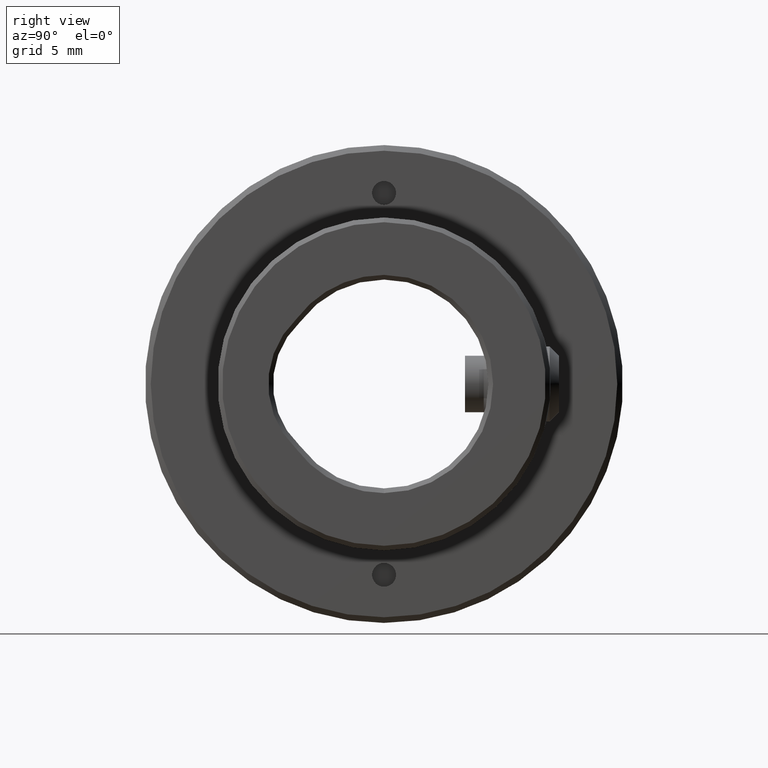
[diagram: clean part render]
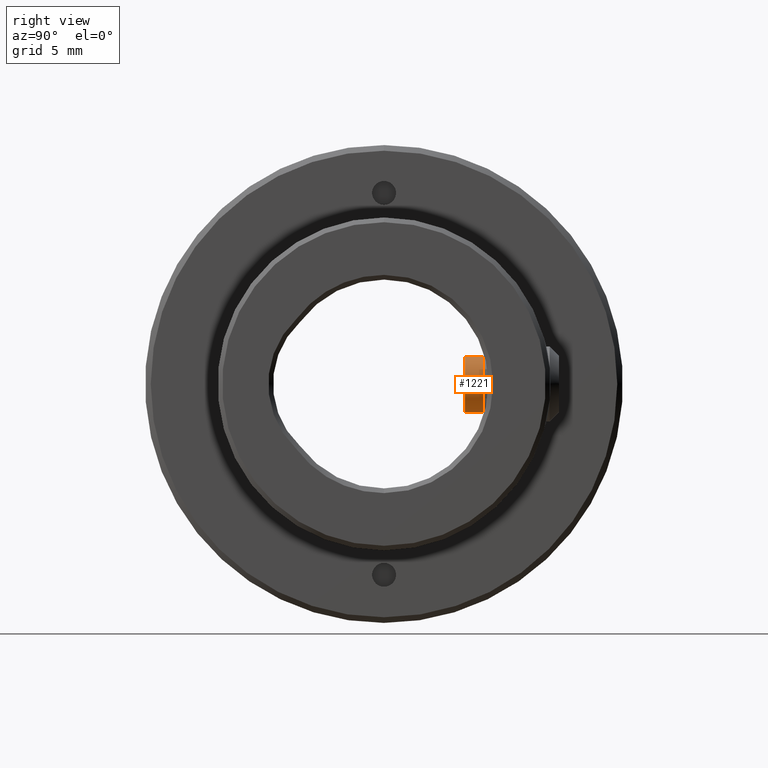
[diagram: same view with one face highlighted and labeled with its STEP entity id]
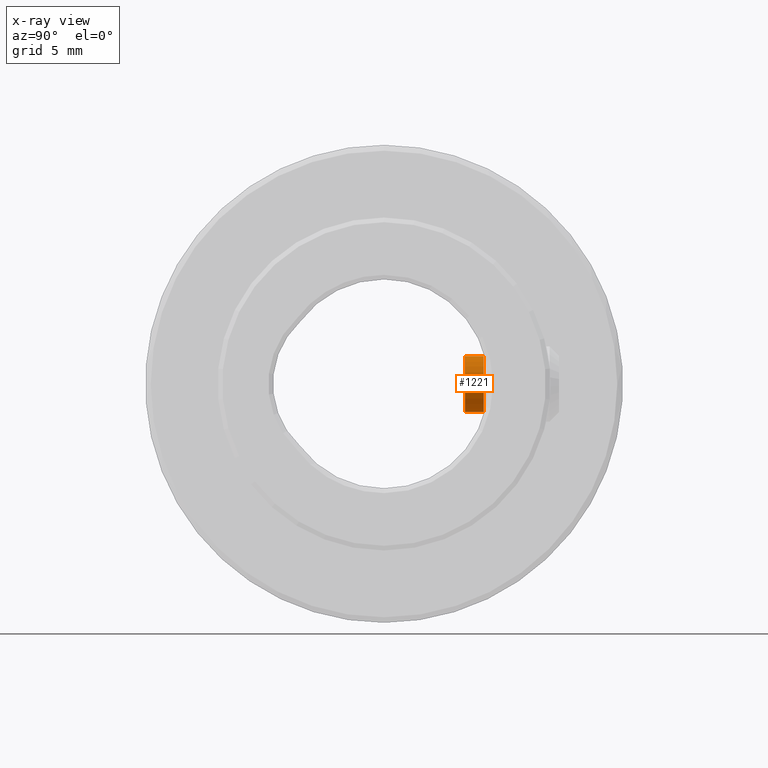
[diagram: x-ray of the same camera — body ghosted, the highlighted face saturated]
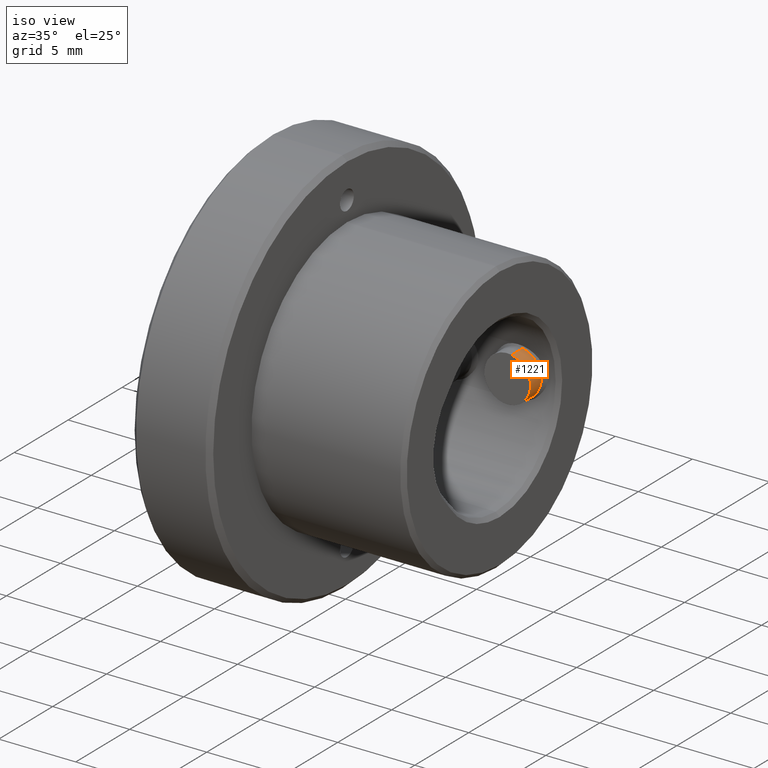
[diagram: same view with one face highlighted and labeled with its STEP entity id]
A machine part, right view. The second image highlights one B-rep face of the part: STEP entity #1221.
The next image is the same camera in x-ray: the body ghosted, the highlighted face saturated — about 0% of this face is hidden behind the body in this view.
A second angle (iso view) of the same face is appended — the face is thin or edge-on in the first view.
In plain terms, the highlighted cylindrical surface (edge-blend (fillet) strip) has radius 1.5 mm, axis along (-0, 1, 0).
Its self-contained STEP definition (entity closure, byte-faithful):
#34 = EDGE_CURVE ( 'NONE', #2649, #421, #4197, .T. ) ;
#254 = VERTEX_POINT ( 'NONE', #4994 ) ;
#256 = DIRECTION ( 'NONE',  ( 5.083153145339572474E-16, -1.000000000000000000, -1.738507377522471505E-17 ) ) ;
#338 = VECTOR ( 'NONE', #3031, 1000.000000000000000 ) ;
#421 = VERTEX_POINT ( 'NONE', #2424 ) ;
#563 = AXIS2_PLACEMENT_3D ( 'NONE', #2486, #1665, #3222 ) ;
#797 = CARTESIAN_POINT ( 'NONE',  ( 12.50000000000000355, 4.303905784946763013, 1.229447424583105313E-15 ) ) ;
#1044 = CARTESIAN_POINT ( 'NONE',  ( 12.22512255316533292, 4.303905784946763013, -1.474599060498022363 ) ) ;
#1147 = AXIS2_PLACEMENT_3D ( 'NONE', #797, #1508, #2297 ) ;
#1221 = ADVANCED_FACE ( 'NONE', ( #2726 ), #4663, .T. ) ;
#1430 = CARTESIAN_POINT ( 'NONE',  ( 12.22512255316533292, 4.303905784946763013, -1.474599060498021919 ) ) ;
#1508 = DIRECTION ( 'NONE',  ( -5.083153145339572474E-16, 1.000000000000000000, 1.738507377522471505E-17 ) ) ;
#1632 = VECTOR ( 'NONE', #2260, 1000.000000000000000 ) ;
#1665 = DIRECTION ( 'NONE',  ( 5.083153145339572474E-16, -1.000000000000000000, -1.738507377522471505E-17 ) ) ;
#1783 = DIRECTION ( 'NONE',  ( 0.1832516312231144140, 0.000000000000000000, 0.9830660403320153895 ) ) ;
#1885 = LINE ( 'NONE', #3450, #338 ) ;
#2165 = ORIENTED_EDGE ( 'NONE', *, *, #34, .T. ) ;
#2260 = DIRECTION ( 'NONE',  ( -5.083153145339572474E-16, 1.000000000000000000, 1.738507377522471505E-17 ) ) ;
#2297 = DIRECTION ( 'NONE',  ( 0.1832516312231142197, 0.000000000000000000, 0.9830660403320153895 ) ) ;
#2424 = CARTESIAN_POINT ( 'NONE',  ( 12.22512255316533292, 5.303905784946763013, -1.474599060498020808 ) ) ;
#2486 = CARTESIAN_POINT ( 'NONE',  ( 12.50000000000000355, 4.303905784946763013, 1.229447424583105313E-15 ) ) ;
#2649 = VERTEX_POINT ( 'NONE', #1430 ) ;
#2677 = EDGE_CURVE ( 'NONE', #3597, #254, #1885, .T. ) ;
#2726 = FACE_OUTER_BOUND ( 'NONE', #3518, .T. ) ;
#3031 = DIRECTION ( 'NONE',  ( -5.083153145339572474E-16, 1.000000000000000000, 1.738507377522471505E-17 ) ) ;
#3222 = DIRECTION ( 'NONE',  ( -0.1832516312231142197, 0.000000000000000000, -0.9830660403320153895 ) ) ;
#3276 = AXIS2_PLACEMENT_3D ( 'NONE', #3701, #256, #1783 ) ;
#3450 = CARTESIAN_POINT ( 'NONE',  ( 12.77487744683467596, 4.303905784946763013, 1.474599060498025027 ) ) ;
#3518 = EDGE_LOOP ( 'NONE', ( #5011, #2165, #4638, #4784 ) ) ;
#3597 = VERTEX_POINT ( 'NONE', #4304 ) ;
#3686 = CIRCLE ( 'NONE', #3276, 1.499999999999999112 ) ;
#3701 = CARTESIAN_POINT ( 'NONE',  ( 12.50000000000000355, 5.303905784946763013, 1.246832498358330099E-15 ) ) ;
#4197 = LINE ( 'NONE', #1044, #1632 ) ;
#4265 = EDGE_CURVE ( 'NONE', #421, #254, #3686, .T. ) ;
#4304 = CARTESIAN_POINT ( 'NONE',  ( 12.77487744683467596, 4.303905784946763013, 1.474599060498024583 ) ) ;
#4638 = ORIENTED_EDGE ( 'NONE', *, *, #4265, .T. ) ;
#4663 = CYLINDRICAL_SURFACE ( 'NONE', #1147, 1.500000000000000666 ) ;
#4775 = CIRCLE ( 'NONE', #563, 1.500000000000000666 ) ;
#4784 = ORIENTED_EDGE ( 'NONE', *, *, #2677, .F. ) ;
#4858 = EDGE_CURVE ( 'NONE', #2649, #3597, #4775, .T. ) ;
#4994 = CARTESIAN_POINT ( 'NONE',  ( 12.77487744683467596, 5.303905784946763013, 1.474599060498023251 ) ) ;
#5011 = ORIENTED_EDGE ( 'NONE', *, *, #4858, .F. ) ;